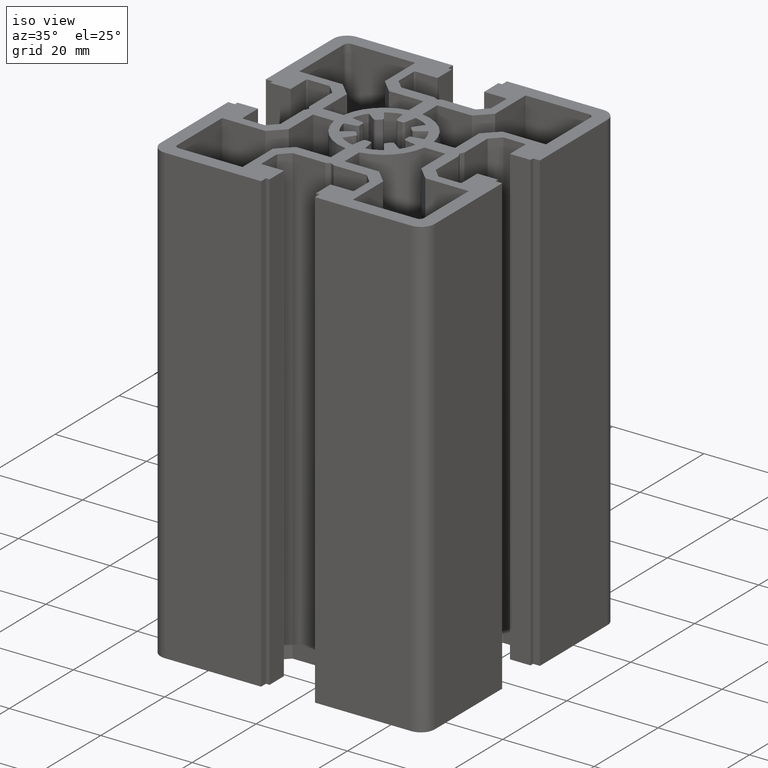
[diagram: clean part render]
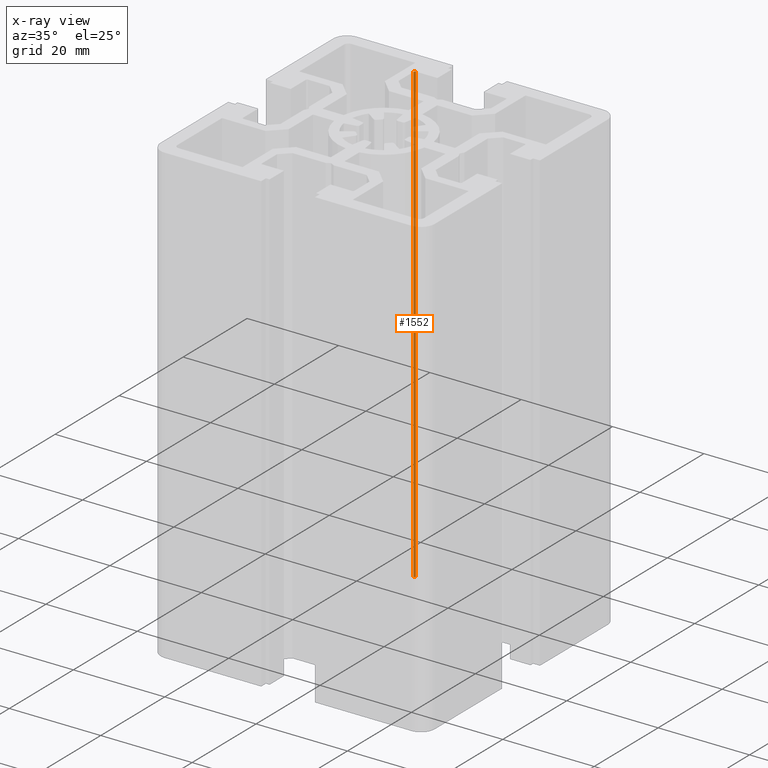
[diagram: x-ray — body ghosted, one internal face saturated and labeled with its STEP entity id]
A machine part, iso view, then the same camera in x-ray: the body is ghosted and one INTERNAL B-rep face — a face not visible from any outside direction — is saturated and labeled: STEP entity #1552.
In plain terms, the highlighted cylindrical surface (edge-blend (fillet) strip) has radius 0.3 mm, axis along (-0, -0, -1).
Its self-contained STEP definition (entity closure, byte-faithful):
#529 = EDGE_CURVE ( 'NONE', #600, #605, #2665, .T. ) ;
#600 = VERTEX_POINT ( 'NONE', #2776 ) ;
#605 = VERTEX_POINT ( 'NONE', #2812 ) ;
#999 = EDGE_CURVE ( 'NONE', #1053, #1009, #3521, .T. ) ;
#1009 = VERTEX_POINT ( 'NONE', #3540 ) ;
#1053 = VERTEX_POINT ( 'NONE', #3584 ) ;
#1510 = EDGE_LOOP ( 'NONE', ( #1553, #1551, #1534, #1538 ) ) ;
#1531 = EDGE_CURVE ( 'NONE', #605, #1009, #5956, .T. ) ;
#1534 = ORIENTED_EDGE ( 'NONE', *, *, #529, .F. ) ;
#1538 = ORIENTED_EDGE ( 'NONE', *, *, #1548, .T. ) ;
#1548 = EDGE_CURVE ( 'NONE', #600, #1053, #5988, .T. ) ;
#1551 = ORIENTED_EDGE ( 'NONE', *, *, #1531, .F. ) ;
#1552 = ADVANCED_FACE ( 'NONE', ( #6003 ), #5989, .F. ) ;
#1553 = ORIENTED_EDGE ( 'NONE', *, *, #999, .T. ) ;
#2658 = DIRECTION ( 'NONE',  ( 1.000000000000000000, 0.0000000000000000000, 0.0000000000000000000 ) ) ;
#2659 = DIRECTION ( 'NONE',  ( -0.0000000000000000000, -0.0000000000000000000, -1.000000000000000000 ) ) ;
#2665 = CIRCLE ( 'NONE', #2666, 0.3000000000000016500 ) ;
#2666 = AXIS2_PLACEMENT_3D ( 'NONE', #2669, #2659, #2658 ) ;
#2669 = CARTESIAN_POINT ( 'NONE',  ( -9.824999999999999300, 23.69999999999999900, 100.0000000000000000 ) ) ;
#2776 = CARTESIAN_POINT ( 'NONE',  ( -10.12500000000000000, 23.69999999999998900, 100.0000000000000000 ) ) ;
#2812 = CARTESIAN_POINT ( 'NONE',  ( -9.824999999999988600, 24.00000000000000000, 100.0000000000000000 ) ) ;
#3496 = CARTESIAN_POINT ( 'NONE',  ( -9.824999999999999300, 23.69999999999999900, 0.0000000000000000000 ) ) ;
#3516 = AXIS2_PLACEMENT_3D ( 'NONE', #3496, #3551, #3550 ) ;
#3521 = CIRCLE ( 'NONE', #3516, 0.3000000000000016500 ) ;
#3540 = CARTESIAN_POINT ( 'NONE',  ( -9.824999999999988600, 24.00000000000000000, 0.0000000000000000000 ) ) ;
#3550 = DIRECTION ( 'NONE',  ( 1.000000000000000000, 0.0000000000000000000, 0.0000000000000000000 ) ) ;
#3551 = DIRECTION ( 'NONE',  ( -0.0000000000000000000, -0.0000000000000000000, -1.000000000000000000 ) ) ;
#3584 = CARTESIAN_POINT ( 'NONE',  ( -10.12500000000000000, 23.69999999999998900, 0.0000000000000000000 ) ) ;
#5956 = LINE ( 'NONE', #6010, #6009 ) ;
#5982 = DIRECTION ( 'NONE',  ( -1.000000000000000000, 0.0000000000000000000, 0.0000000000000000000 ) ) ;
#5983 = DIRECTION ( 'NONE',  ( -0.0000000000000000000, -0.0000000000000000000, -1.000000000000000000 ) ) ;
#5984 = CARTESIAN_POINT ( 'NONE',  ( -9.824999999999999300, 23.69999999999999900, 100.0000000000000000 ) ) ;
#5985 = DIRECTION ( 'NONE',  ( -0.0000000000000000000, -0.0000000000000000000, -1.000000000000000000 ) ) ;
#5986 = VECTOR ( 'NONE', #5985, 1000.000000000000000 ) ;
#5987 = CARTESIAN_POINT ( 'NONE',  ( -10.12500000000000000, 23.69999999999998900, 100.0000000000000000 ) ) ;
#5988 = LINE ( 'NONE', #5987, #5986 ) ;
#5989 = CYLINDRICAL_SURFACE ( 'NONE', #6005, 0.3000000000000016500 ) ;
#6003 = FACE_OUTER_BOUND ( 'NONE', #1510, .T. ) ;
#6005 = AXIS2_PLACEMENT_3D ( 'NONE', #5984, #5983, #5982 ) ;
#6008 = DIRECTION ( 'NONE',  ( -0.0000000000000000000, -0.0000000000000000000, -1.000000000000000000 ) ) ;
#6009 = VECTOR ( 'NONE', #6008, 1000.000000000000000 ) ;
#6010 = CARTESIAN_POINT ( 'NONE',  ( -9.824999999999988600, 24.00000000000000000, 100.0000000000000000 ) ) ;